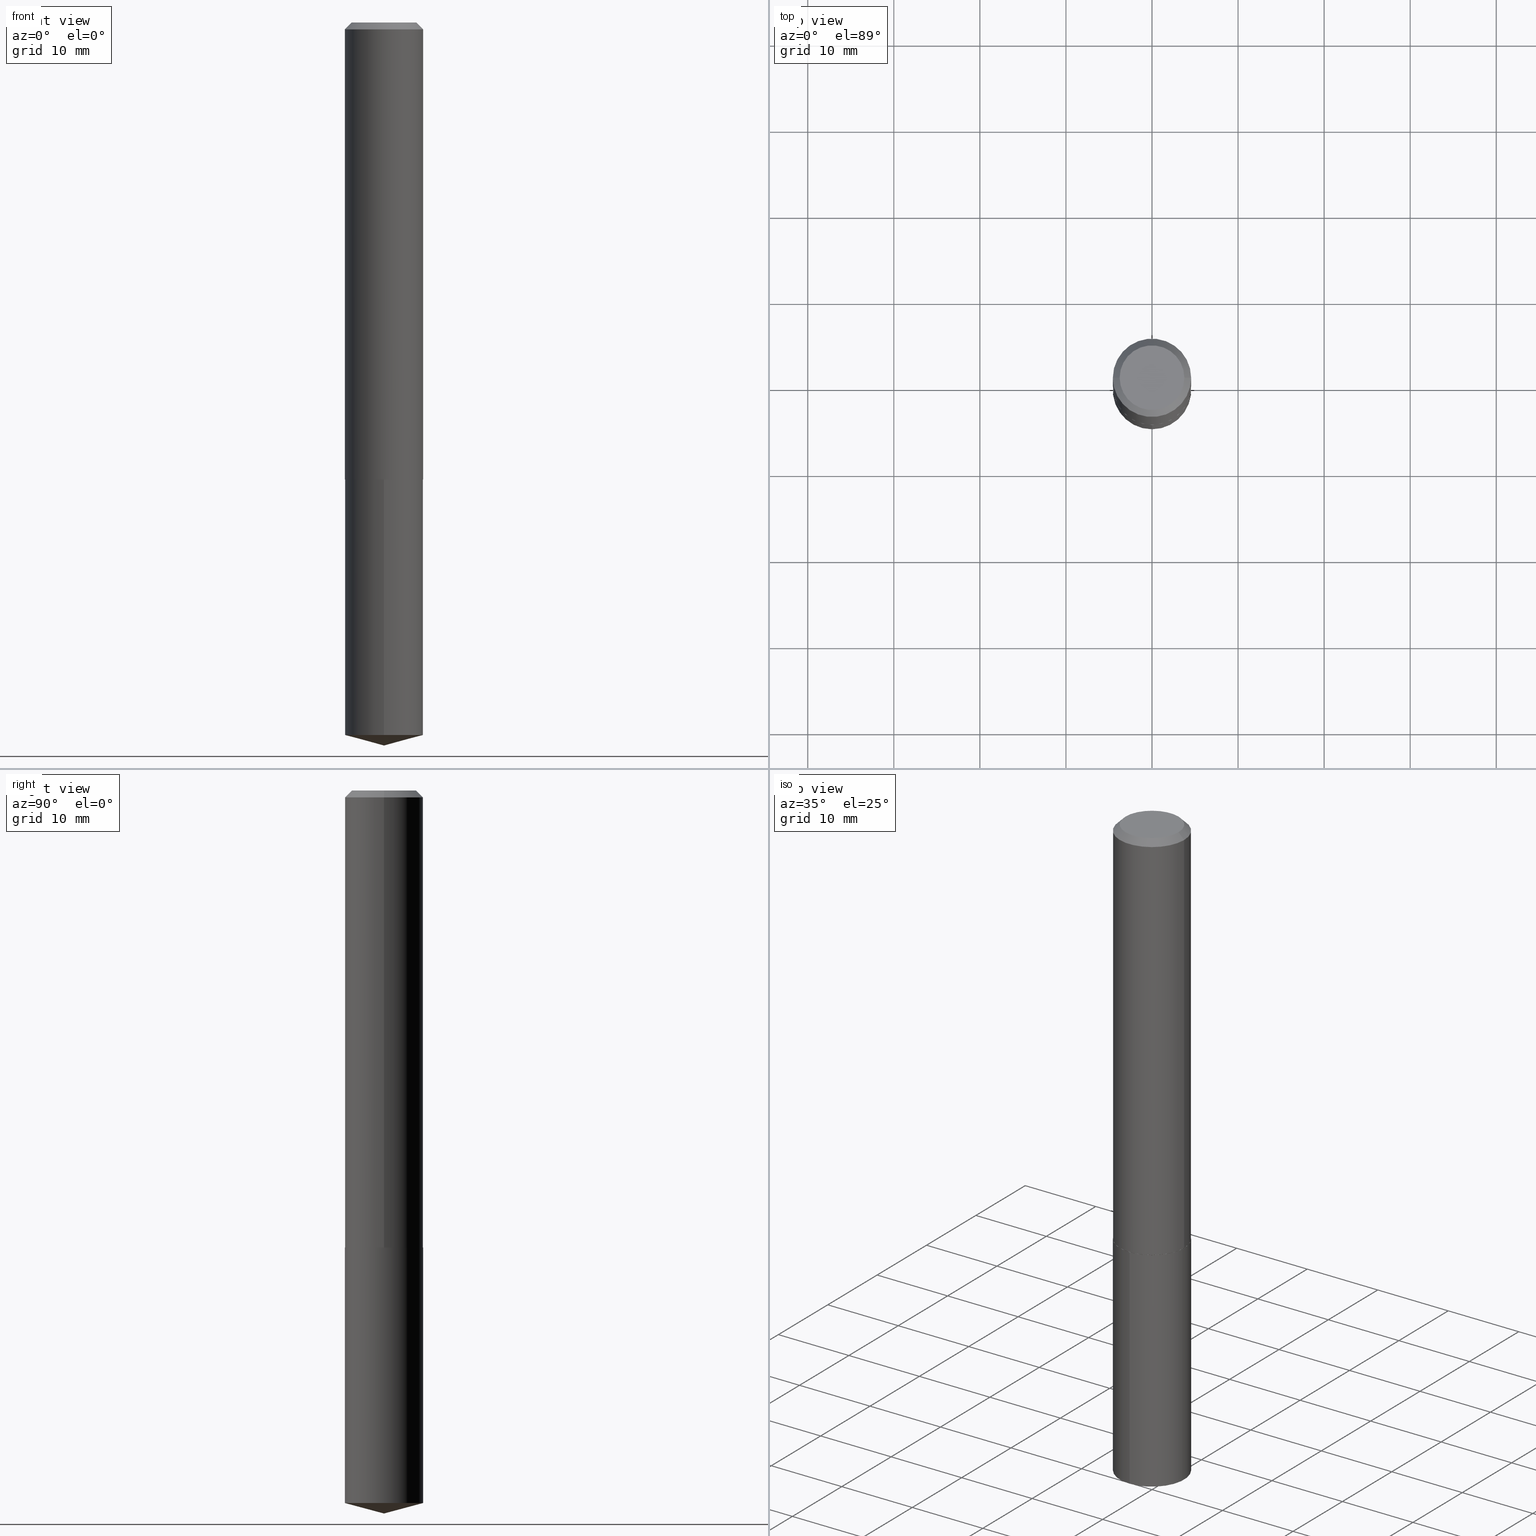
[diagram: canonical four-view strip — front | top / right | iso, engineering-drawing reading convention]
A machine part, canonical four-view strip (front | top / right | iso — engineering-drawing reading convention). The complete STEP part file that produces these views, byte-faithful:
ISO-10303-21;
HEADER;
FILE_DESCRIPTION (( 'STEP AP203' ),
    '1' );
FILE_NAME ('69026.STEP',
    '2024-04-23T14:26:44',
    ( '' ),
    ( '' ),
    'SwSTEP 2.0',
    'SolidWorks 2023',
    '' );
FILE_SCHEMA (( 'CONFIG_CONTROL_DESIGN' ));
ENDSEC;

DATA;
#1 = APPROVAL_DATE_TIME ( #4, #276 ) ;
#2 = ORIENTED_EDGE ( 'NONE', *, *, #3, .T. ) ;
#3 = EDGE_CURVE ( 'NONE', #260, #53, #76, .T. ) ;
#4 = DATE_AND_TIME ( #256, #354 ) ;
#5 = APPLICATION_CONTEXT ( 'configuration controlled 3d designs of mechanical parts and assemblies' ) ;
#6 = CARTESIAN_POINT ( 'NONE',  ( 5.111274351807554765E-29, -7.297545146316060308E-15, -2.090100000000000513 ) ) ;
#7 = DIRECTION ( 'NONE',  ( 1.000000000000000000, -6.982962677686267499E-15, 4.876180342865737915E-29 ) ) ;
#8 = AXIS2_PLACEMENT_3D ( 'NONE', #235, #365, #102 ) ;
#9 = APPROVAL_PERSON_ORGANIZATION ( #97, #293, #70 ) ;
#10 = EDGE_CURVE ( 'NONE', #190, #53, #63, .T. ) ;
#11 = CARTESIAN_POINT ( 'NONE',  ( -0.1791500000000000314, -2.430389657963233420E-15, -0.03125000000000018735 ) ) ;
#12 = DIRECTION ( 'NONE',  ( -6.982962677686265133E-15, -1.000000000000000000, 3.049788438363675772E-15 ) ) ;
#13 = ORIENTED_EDGE ( 'NONE', *, *, #351, .T. ) ;
#14 = ORIENTED_EDGE ( 'NONE', *, *, #79, .F. ) ;
#15 = LINE ( 'NONE', #129, #303 ) ;
#16 = CONICAL_SURFACE ( 'NONE', #8, 146.9311341562574853, 1.308996938995751425 ) ;
#17 = CC_DESIGN_APPROVAL ( #130, ( #286 ) ) ;
#18 = DIRECTION ( 'NONE',  ( -6.745023994389843866E-15, -0.9659258262890684232, 0.2588190451025200178 ) ) ;
#19 = ORIENTED_EDGE ( 'NONE', *, *, #283, .F. ) ;
#20 = EDGE_CURVE ( 'NONE', #352, #190, #99, .T. ) ;
#21 = DIRECTION ( 'NONE',  ( -0.7071067811865454633, 2.468850131082235367E-15, -0.7071067811865495711 ) ) ;
#22 = CONICAL_SURFACE ( 'NONE', #382, 0.1791500000000000314, 0.7853981633974453924 ) ;
#23 = DIRECTION ( 'NONE',  ( -2.445528270393014272E-29, 3.491396182712972122E-15, 1.000000000000000000 ) ) ;
#24 = CC_DESIGN_DATE_AND_TIME_ASSIGNMENT ( #227, #259, ( #304 ) ) ;
#25 = ADVANCED_FACE ( 'NONE', ( #96 ), #160, .T. ) ;
#26 = CIRCLE ( 'NONE', #61, 0.1791500000000002535 ) ;
#27 =( NAMED_UNIT ( * ) SI_UNIT ( $, .STERADIAN. ) SOLID_ANGLE_UNIT ( ) );
#28 = APPROVAL_ROLE ( '' ) ;
#29 = PERSON_AND_ORGANIZATION ( #348, #207 ) ;
#30 = DIRECTION ( 'NONE',  ( -2.445468806185136597E-29, 3.491481338843145583E-15, 1.000000000000000000 ) ) ;
#31 = APPROVAL_STATUS ( 'not_yet_approved' ) ;
#32 = AXIS2_PLACEMENT_3D ( 'NONE', #236, #163, #12 ) ;
#33 = DIRECTION ( 'NONE',  ( -1.000000000000000000, 6.982962677686267499E-15, 0.000000000000000000 ) ) ;
#34 = EDGE_CURVE ( 'NONE', #326, #181, #72, .T. ) ;
#35 = LOCAL_TIME ( 10, 26, 44.00000000000000000, #36 ) ;
#36 = COORDINATED_UNIVERSAL_TIME_OFFSET ( 5, 0, .BEHIND. ) ;
#37 = ORIENTED_EDGE ( 'NONE', *, *, #234, .F. ) ;
#38 = COORDINATED_UNIVERSAL_TIME_OFFSET ( 5, 0, .BEHIND. ) ;
#39 = CARTESIAN_POINT ( 'NONE',  ( 0.1791500000000002535, -8.548542910023556308E-15, -2.090100000000000513 ) ) ;
#40 = VERTEX_POINT ( 'NONE', #98 ) ;
#41 = EDGE_CURVE ( 'NONE', #190, #352, #376, .T. ) ;
#42 = FACE_OUTER_BOUND ( 'NONE', #174, .T. ) ;
#43 = CIRCLE ( 'NONE', #32, 0.1791500000000000314 ) ;
#44 = AXIS2_PLACEMENT_3D ( 'NONE', #239, #78, #338 ) ;
#45 = FACE_OUTER_BOUND ( 'NONE', #308, .T. ) ;
#46 = DIRECTION ( 'NONE',  ( 1.000000000000000000, -6.982962677686267499E-15, 4.876176775795936353E-29 ) ) ;
#47 = CARTESIAN_POINT ( 'NONE',  ( -0.1791500000000001147, 1.272937311114220298E-15, -8.812272214191669091E-30 ) ) ;
#48 = VECTOR ( 'NONE', #108, 39.37007874015748143 ) ;
#49 = LINE ( 'NONE', #47, #48 ) ;
#50 = APPLICATION_CONTEXT ( 'configuration controlled 3d designs of mechanical parts and assemblies' ) ;
#51 = CARTESIAN_POINT ( 'NONE',  ( 5.112497086210647566E-29, -7.299290886985481023E-15, -2.090600000000000236 ) ) ;
#52 = VERTEX_POINT ( 'NONE', #300 ) ;
#53 = VERTEX_POINT ( 'NONE', #39 ) ;
#54 = CC_DESIGN_PERSON_AND_ORGANIZATION_ASSIGNMENT ( #62, #125, ( #286 ) ) ;
#55 = CARTESIAN_POINT ( 'NONE',  ( -1.250997763707443541E-15, -0.1791500000000073312, -2.090599999999999792 ) ) ;
#56 = AXIS2_PLACEMENT_3D ( 'NONE', #274, #157, #159 ) ;
#57 = LOCAL_TIME ( 10, 26, 44.00000000000000000, #177 ) ;
#58 = DIRECTION ( 'NONE',  ( -6.982962677686265133E-15, -1.000000000000000000, 3.049788438363675772E-15 ) ) ;
#59 = LENGTH_MEASURE_WITH_UNIT ( LENGTH_MEASURE( 0.02539999999999999897 ), #169 );
#60 = CARTESIAN_POINT ( 'NONE',  ( 5.112497086210647566E-29, -7.299290886985481023E-15, -2.090600000000000236 ) ) ;
#61 = AXIS2_PLACEMENT_3D ( 'NONE', #182, #30, #302 ) ;
#62 = PERSON_AND_ORGANIZATION ( #348, #207 ) ;
#63 = LINE ( 'NONE', #325, #154 ) ;
#64 = PRODUCT_DEFINITION ( 'UNKNOWN', '', #286, #374 ) ;
#65 = PERSON_AND_ORGANIZATION ( #348, #207 ) ;
#66 = ORIENTED_EDGE ( 'NONE', *, *, #10, .F. ) ;
#67 = DATE_AND_TIME ( #173, #215 ) ;
#68 = CONICAL_SURFACE ( 'NONE', #141, 146.9311341562574853, 1.308996938995751425 ) ;
#69 = CARTESIAN_POINT ( 'NONE',  ( 5.112497086210647566E-29, -7.299290886985481023E-15, -2.090600000000000236 ) ) ;
#70 = APPROVAL_ROLE ( '' ) ;
#71 = ORIENTED_EDGE ( 'NONE', *, *, #79, .T. ) ;
#72 = LINE ( 'NONE', #94, #388 ) ;
#73 = ORIENTED_EDGE ( 'NONE', *, *, #314, .F. ) ;
#74 = DIRECTION ( 'NONE',  ( -0.7071067811865957564, 7.493145998870527710E-15, 0.7071067811864992780 ) ) ;
#75 = FACE_OUTER_BOUND ( 'NONE', #292, .T. ) ;
#76 = CIRCLE ( 'NONE', #91, 0.1791500000000002535 ) ;
#77 = AXIS2_PLACEMENT_3D ( 'NONE', #139, #89, #320 ) ;
#78 = DIRECTION ( 'NONE',  ( -2.445468806185136597E-29, 3.491481338843145583E-15, 1.000000000000000000 ) ) ;
#79 = EDGE_CURVE ( 'NONE', #52, #271, #195, .T. ) ;
#80 = DIRECTION ( 'NONE',  ( -1.000000000000000000, 6.982962677686267499E-15, 0.000000000000000000 ) ) ;
#81 = FACE_OUTER_BOUND ( 'NONE', #83, .T. ) ;
#82 = DIRECTION ( 'NONE',  ( 6.863315791527698204E-15, 0.9659258262890701996, 0.2588190451025132455 ) ) ;
#83 = EDGE_LOOP ( 'NONE', ( #337, #273, #100, #209 ) ) ;
#84 = ADVANCED_FACE ( 'NONE', ( #126 ), #16, .T. ) ;
#85 = DIRECTION ( 'NONE',  ( 1.000000000000000000, -6.982962677686267499E-15, 4.876176775795936353E-29 ) ) ;
#86 = CARTESIAN_POINT ( 'NONE',  ( 5.112497086210647566E-29, -7.299290886985481023E-15, -2.090600000000000236 ) ) ;
#87 = AXIS2_PLACEMENT_3D ( 'NONE', #51, #225, #347 ) ;
#88 = CC_DESIGN_SECURITY_CLASSIFICATION ( #304, ( #286 ) ) ;
#89 = DIRECTION ( 'NONE',  ( -2.445468806185136597E-29, 3.491481338843145583E-15, 1.000000000000000000 ) ) ;
#90 = MECHANICAL_CONTEXT ( 'NONE', #50, 'mechanical' ) ;
#91 = AXIS2_PLACEMENT_3D ( 'NONE', #6, #211, #229 ) ;
#92 = APPROVAL_DATE_TIME ( #67, #130 ) ;
#93 = AXIS2_PLACEMENT_3D ( 'NONE', #285, #115, #85 ) ;
#94 = CARTESIAN_POINT ( 'NONE',  ( 1.272937311114270588E-15, 0.1791499999999927040, -2.090600000000001124 ) ) ;
#95 = CC_DESIGN_PERSON_AND_ORGANIZATION_ASSIGNMENT ( #29, #149, ( #304 ) ) ;
#96 = FACE_OUTER_BOUND ( 'NONE', #231, .T. ) ;
#97 = PERSON_AND_ORGANIZATION ( #348, #207 ) ;
#98 = CARTESIAN_POINT ( 'NONE',  ( 0.1791500000000000314, -1.360106555546343720E-15, -0.03125000000000018735 ) ) ;
#99 = CIRCLE ( 'NONE', #370, 0.1786500000000002808 ) ;
#100 = ORIENTED_EDGE ( 'NONE', *, *, #283, .T. ) ;
#101 = CALENDAR_DATE ( 2024, 23, 4 ) ;
#102 = DIRECTION ( 'NONE',  ( -6.982962677686265133E-15, -1.000000000000000000, 3.510303681827581269E-15 ) ) ;
#103 = DIRECTION ( 'NONE',  ( 0.7071067811865454633, -7.319954787623248157E-15, -0.7071067811865495711 ) ) ;
#104 = DIRECTION ( 'NONE',  ( -2.438088387897960049E-29, 3.491481338843145188E-15, 1.000000000000000000 ) ) ;
#105 = AXIS2_PLACEMENT_3D ( 'NONE', #60, #192, #58 ) ;
#106 = AXIS2_PLACEMENT_3D ( 'NONE', #114, #164, #252 ) ;
#107 = EDGE_CURVE ( 'NONE', #352, #260, #295, .T. ) ;
#108 = DIRECTION ( 'NONE',  ( -2.445468806185136877E-29, 3.491481338843145188E-15, 1.000000000000000000 ) ) ;
#109 = CARTESIAN_POINT ( 'NONE',  ( 0.000000000000000000, 0.000000000000000000, 0.000000000000000000 ) ) ;
#110 = FACE_OUTER_BOUND ( 'NONE', #345, .T. ) ;
#111 = EDGE_CURVE ( 'NONE', #53, #260, #26, .T. ) ;
#112 = AXIS2_PLACEMENT_3D ( 'NONE', #307, #313, #315 ) ;
#113 = PERSON_AND_ORGANIZATION_ROLE ( 'design_owner' ) ;
#114 = CARTESIAN_POINT ( 'NONE',  ( 5.112497086210647566E-29, -7.299290886985481023E-15, -2.090600000000000236 ) ) ;
#115 = DIRECTION ( 'NONE',  ( -2.445468806185136597E-29, 3.491481338843145583E-15, 1.000000000000000000 ) ) ;
#116 = CARTESIAN_POINT ( 'NONE',  ( -2.994835545909350361E-48, 4.275831445897007673E-34, 1.224646799147363014E-19 ) ) ;
#117 = ADVANCED_FACE ( 'NONE', ( #42 ), #381, .F. ) ;
#118 = DIRECTION ( 'NONE',  ( -2.445528270393014272E-29, 3.491396182712972122E-15, 1.000000000000000000 ) ) ;
#119 = APPLICATION_PROTOCOL_DEFINITION ( 'international standard', 'config_control_design', 1994, #50 ) ;
#120 = CC_DESIGN_PERSON_AND_ORGANIZATION_ASSIGNMENT ( #65, #327, ( #64 ) ) ;
#121 = SHAPE_DEFINITION_REPRESENTATION ( #168, #213 ) ;
#122 = ORIENTED_EDGE ( 'NONE', *, *, #34, .F. ) ;
#123 = DIRECTION ( 'NONE',  ( -2.445528270393014272E-29, 3.491396182712971728E-15, 1.000000000000000000 ) ) ;
#124 = ORIENTED_EDGE ( 'NONE', *, *, #385, .T. ) ;
#125 = PERSON_AND_ORGANIZATION_ROLE ( 'creator' ) ;
#126 = FACE_OUTER_BOUND ( 'NONE', #240, .T. ) ;
#127 = ORIENTED_EDGE ( 'NONE', *, *, #111, .T. ) ;
#128 = LINE ( 'NONE', #341, #321 ) ;
#129 = CARTESIAN_POINT ( 'NONE',  ( 0.1791500000000001147, -1.250997763707495606E-15, 8.735670693838425178E-30 ) ) ;
#130 = APPROVAL ( #208, 'UNSPECIFIED' ) ;
#131 = DIRECTION ( 'NONE',  ( -2.445468806185136877E-29, 3.491481338843145188E-15, 1.000000000000000000 ) ) ;
#132 = VERTEX_POINT ( 'NONE', #11 ) ;
#133 = EDGE_LOOP ( 'NONE', ( #188, #2, #305, #175 ) ) ;
#134 = CARTESIAN_POINT ( 'NONE',  ( 8.087606543016738153E-29, -1.154639631585007168E-14, -3.307100000000000151 ) ) ;
#135 = ORIENTED_EDGE ( 'NONE', *, *, #222, .T. ) ;
#136 = ORIENTED_EDGE ( 'NONE', *, *, #41, .F. ) ;
#137 = ADVANCED_FACE ( 'NONE', ( #45 ), #237, .F. ) ;
#138 = CARTESIAN_POINT ( 'NONE',  ( 7.642090019328597407E-31, -1.091087918388489527E-16, -0.03125000000000018735 ) ) ;
#139 = CARTESIAN_POINT ( 'NONE',  ( 5.111274351807554765E-29, -7.297545146316060308E-15, -2.090100000000000513 ) ) ;
#140 = FACE_OUTER_BOUND ( 'NONE', #153, .T. ) ;
#141 = AXIS2_PLACEMENT_3D ( 'NONE', #185, #344, #186 ) ;
#142 = ORIENTED_EDGE ( 'NONE', *, *, #20, .T. ) ;
#143 = EDGE_CURVE ( 'NONE', #132, #40, #270, .T. ) ;
#144 = PERSON_AND_ORGANIZATION ( #348, #207 ) ;
#145 = PERSON_AND_ORGANIZATION_ROLE ( 'design_supplier' ) ;
#146 = DIRECTION ( 'NONE',  ( -1.000000000000000000, 6.982962677686265922E-15, -4.876176775795935793E-29 ) ) ;
#147 = DATE_AND_TIME ( #204, #35 ) ;
#148 = CARTESIAN_POINT ( 'NONE',  ( 5.112497086210647566E-29, -7.299290886985481023E-15, -2.090600000000000236 ) ) ;
#149 = PERSON_AND_ORGANIZATION_ROLE ( 'classification_officer' ) ;
#150 = ORIENTED_EDGE ( 'NONE', *, *, #356, .F. ) ;
#151 = PERSON_AND_ORGANIZATION ( #348, #207 ) ;
#152 = CARTESIAN_POINT ( 'NONE',  ( -5.989671091818700721E-48, 8.551662891794015345E-34, 2.449293598294726028E-19 ) ) ;
#153 = EDGE_LOOP ( 'NONE', ( #255, #142, #251, #331 ) ) ;
#154 = VECTOR ( 'NONE', #361, 39.37007874015748143 ) ;
#155 = LINE ( 'NONE', #158, #247 ) ;
#156 = CC_DESIGN_PERSON_AND_ORGANIZATION_ASSIGNMENT ( #144, #145, ( #286 ) ) ;
#157 = DIRECTION ( 'NONE',  ( -2.445468806185136597E-29, 3.491481338843145583E-15, 1.000000000000000000 ) ) ;
#158 = CARTESIAN_POINT ( 'NONE',  ( 8.087357911270757740E-29, -1.154675237066155108E-14, -3.307100000000000151 ) ) ;
#159 = DIRECTION ( 'NONE',  ( 1.000000000000000000, -6.982962677686262766E-15, 0.000000000000000000 ) ) ;
#160 = CONICAL_SURFACE ( 'NONE', #200, 0.1791500000000000314, 0.7853981633974453924 ) ;
#161 = AXIS2_PLACEMENT_3D ( 'NONE', #355, #118, #198 ) ;
#162 = PRODUCT_RELATED_PRODUCT_CATEGORY ( 'detail', '', ( #318 ) ) ;
#163 = DIRECTION ( 'NONE',  ( -2.445528270393014272E-29, 3.491396182712972122E-15, 1.000000000000000000 ) ) ;
#164 = DIRECTION ( 'NONE',  ( -2.445528270393014272E-29, 3.491396182712972122E-15, 1.000000000000000000 ) ) ;
#165 = CYLINDRICAL_SURFACE ( 'NONE', #93, 0.1791500000000001147 ) ;
#166 = CIRCLE ( 'NONE', #106, 0.1791500000000000314 ) ;
#167 = VERTEX_POINT ( 'NONE', #187 ) ;
#168 = PRODUCT_DEFINITION_SHAPE ( 'NONE', 'NONE',  #64 ) ;
#169 =( LENGTH_UNIT ( ) NAMED_UNIT ( * ) SI_UNIT ( $, .METRE. ) );
#170 = EDGE_LOOP ( 'NONE', ( #202, #203, #266 ) ) ;
#171 = FACE_OUTER_BOUND ( 'NONE', #133, .T. ) ;
#172 = EDGE_CURVE ( 'NONE', #271, #52, #358, .T. ) ;
#173 = CALENDAR_DATE ( 2024, 23, 4 ) ;
#174 = EDGE_LOOP ( 'NONE', ( #210, #71 ) ) ;
#175 = ORIENTED_EDGE ( 'NONE', *, *, #143, .F. ) ;
#176 = CARTESIAN_POINT ( 'NONE',  ( 7.642090019328597407E-31, -1.091087918388489527E-16, -0.03125000000000018735 ) ) ;
#177 = COORDINATED_UNIVERSAL_TIME_OFFSET ( 5, 0, .BEHIND. ) ;
#178 = DIRECTION ( 'NONE',  ( -2.445468806185136597E-29, 3.491481338843145583E-15, 1.000000000000000000 ) ) ;
#179 = CC_DESIGN_DATE_AND_TIME_ASSIGNMENT ( #357, #329, ( #64 ) ) ;
#180 = ORIENTED_EDGE ( 'NONE', *, *, #356, .T. ) ;
#181 = VERTEX_POINT ( 'NONE', #309 ) ;
#182 = CARTESIAN_POINT ( 'NONE',  ( 5.111274351807554765E-29, -7.297545146316060308E-15, -2.090100000000000513 ) ) ;
#183 = CC_DESIGN_PERSON_AND_ORGANIZATION_ASSIGNMENT ( #377, #113, ( #318 ) ) ;
#184 = CIRCLE ( 'NONE', #317, 0.1791500000000000314 ) ;
#185 = CARTESIAN_POINT ( 'NONE',  ( -8.819315833951036694E-28, 1.259099682832391538E-13, 36.06297874015748306 ) ) ;
#186 = DIRECTION ( 'NONE',  ( -6.982962677686265133E-15, -1.000000000000000000, 3.510303681827581269E-15 ) ) ;
#187 = CARTESIAN_POINT ( 'NONE',  ( -1.250997763707415339E-15, -0.1791500000000114667, -3.259096902175965038 ) ) ;
#188 = ORIENTED_EDGE ( 'NONE', *, *, #193, .F. ) ;
#189 = CARTESIAN_POINT ( 'NONE',  ( -0.1479000000000000037, 1.087334575949222546E-15, 2.449293598220593614E-19 ) ) ;
#190 = VERTEX_POINT ( 'NONE', #371 ) ;
#191 = CARTESIAN_POINT ( 'NONE',  ( -0.1791500000000000314, 1.141888971868646111E-15, -0.03125000000000018735 ) ) ;
#192 = DIRECTION ( 'NONE',  ( -2.445528270393014272E-29, 3.491396182712972122E-15, 1.000000000000000000 ) ) ;
#193 = EDGE_CURVE ( 'NONE', #260, #132, #49, .T. ) ;
#194 = DIRECTION ( 'NONE',  ( -6.982962677686265133E-15, -1.000000000000000000, 3.049788438363675772E-15 ) ) ;
#195 = CIRCLE ( 'NONE', #343, 0.1479000000000000037 ) ;
#196 = CC_DESIGN_APPROVAL ( #293, ( #64 ) ) ;
#197 = ORIENTED_EDGE ( 'NONE', *, *, #351, .F. ) ;
#198 = DIRECTION ( 'NONE',  ( -6.982962677686265133E-15, -1.000000000000000000, 3.049788438363675772E-15 ) ) ;
#199 = ADVANCED_FACE ( 'NONE', ( #373 ), #272, .T. ) ;
#200 = AXIS2_PLACEMENT_3D ( 'NONE', #176, #296, #33 ) ;
#201 = EDGE_LOOP ( 'NONE', ( #124, #13 ) ) ;
#202 = ORIENTED_EDGE ( 'NONE', *, *, #222, .F. ) ;
#203 = ORIENTED_EDGE ( 'NONE', *, *, #241, .T. ) ;
#204 = CALENDAR_DATE ( 2024, 23, 4 ) ;
#205 = ORIENTED_EDGE ( 'NONE', *, *, #246, .T. ) ;
#206 = VECTOR ( 'NONE', #21, 39.37007874015748143 ) ;
#207 = ORGANIZATION ( 'UNSPECIFIED', 'UNSPECIFIED', '' ) ;
#208 = APPROVAL_STATUS ( 'not_yet_approved' ) ;
#209 = ORIENTED_EDGE ( 'NONE', *, *, #143, .T. ) ;
#210 = ORIENTED_EDGE ( 'NONE', *, *, #172, .T. ) ;
#211 = DIRECTION ( 'NONE',  ( -2.445468806185136597E-29, 3.491481338843145583E-15, 1.000000000000000000 ) ) ;
#212 = ADVANCED_FACE ( 'NONE', ( #75 ), #311, .T. ) ;
#213 = ADVANCED_BREP_SHAPE_REPRESENTATION ( '69026', ( #349, #346, #384 ), #291 ) ;
#214 = FACE_OUTER_BOUND ( 'NONE', #170, .T. ) ;
#215 = LOCAL_TIME ( 10, 26, 44.00000000000000000, #263 ) ;
#216 = LINE ( 'NONE', #219, #297 ) ;
#217 = CARTESIAN_POINT ( 'NONE',  ( -1.250997763707443541E-15, -0.1791500000000073312, -2.090599999999999792 ) ) ;
#218 = EDGE_CURVE ( 'NONE', #52, #40, #216, .T. ) ;
#219 = CARTESIAN_POINT ( 'NONE',  ( 0.1791500000000000314, -1.338167008139618831E-15, -0.03125000000000018735 ) ) ;
#220 = CARTESIAN_POINT ( 'NONE',  ( 7.642090019328597407E-31, -1.091087918388489527E-16, -0.03125000000000018735 ) ) ;
#221 = APPLICATION_PROTOCOL_DEFINITION ( 'international standard', 'config_control_design', 1994, #5 ) ;
#222 = EDGE_CURVE ( 'NONE', #258, #326, #128, .T. ) ;
#223 = CC_DESIGN_APPROVAL ( #276, ( #304 ) ) ;
#224 = DIRECTION ( 'NONE',  ( 2.438088387897960049E-29, -3.491481338843145188E-15, -1.000000000000000000 ) ) ;
#225 = DIRECTION ( 'NONE',  ( 2.445528270393014272E-29, -3.491396182712971728E-15, -1.000000000000000000 ) ) ;
#226 = CYLINDRICAL_SURFACE ( 'NONE', #228, 0.1791500000000000314 ) ;
#227 = DATE_AND_TIME ( #268, #57 ) ;
#228 = AXIS2_PLACEMENT_3D ( 'NONE', #86, #23, #248 ) ;
#229 = DIRECTION ( 'NONE',  ( 1.000000000000000000, -6.982962677686262766E-15, 0.000000000000000000 ) ) ;
#230 = DIRECTION ( 'NONE',  ( 1.000000000000000000, -6.982962677686270655E-15, 0.000000000000000000 ) ) ;
#231 = EDGE_LOOP ( 'NONE', ( #14, #264, #282, #19 ) ) ;
#232 = CLOSED_SHELL ( 'NONE', ( #323, #84, #261, #332, #342 ) ) ;
#233 = APPROVAL_ROLE ( '' ) ;
#234 = EDGE_CURVE ( 'NONE', #167, #389, #278, .T. ) ;
#235 = CARTESIAN_POINT ( 'NONE',  ( -8.819315833951036694E-28, 1.259099682832391538E-13, 36.06297874015748306 ) ) ;
#236 = CARTESIAN_POINT ( 'NONE',  ( 7.970089294348630770E-29, -1.137897651075457780E-14, -3.259096902175965482 ) ) ;
#237 = PLANE ( 'NONE',  #290 ) ;
#238 = LOCAL_TIME ( 10, 26, 44.00000000000000000, #38 ) ;
#239 = CARTESIAN_POINT ( 'NONE',  ( 7.642090019328597407E-31, -1.091087918388489527E-16, -0.03125000000000018735 ) ) ;
#240 = EDGE_LOOP ( 'NONE', ( #289, #135, #150 ) ) ;
#241 = EDGE_CURVE ( 'NONE', #258, #167, #155, .T. ) ;
#242 = DIRECTION ( 'NONE',  ( 1.000000000000000000, -6.982962677686265922E-15, 4.876176775795935793E-29 ) ) ;
#243 = DIRECTION ( 'NONE',  ( -2.445468806185136597E-29, 3.491481338843145583E-15, 1.000000000000000000 ) ) ;
#244 = AXIS2_PLACEMENT_3D ( 'NONE', #109, #367, #46 ) ;
#245 = DIRECTION ( 'NONE',  ( 0.000000000000000000, 0.000000000000000000, 1.000000000000000000 ) ) ;
#246 = EDGE_CURVE ( 'NONE', #326, #167, #43, .T. ) ;
#247 = VECTOR ( 'NONE', #18, 39.37007874015748854 ) ;
#248 = DIRECTION ( 'NONE',  ( -6.982962677686265133E-15, -1.000000000000000000, 3.049788438363675772E-15 ) ) ;
#249 = UNCERTAINTY_MEASURE_WITH_UNIT (LENGTH_MEASURE( 1.000000000000000082E-05 ), #350, 'distance_accuracy_value', 'NONE');
#250 = CARTESIAN_POINT ( 'NONE',  ( -0.1786500000000002808, -6.027257062375948647E-15, -2.090600000000000236 ) ) ;
#251 = ORIENTED_EDGE ( 'NONE', *, *, #10, .T. ) ;
#252 = DIRECTION ( 'NONE',  ( -6.982962677686265133E-15, -1.000000000000000000, 3.049788438363675772E-15 ) ) ;
#253 = CIRCLE ( 'NONE', #161, 0.1791500000000000314 ) ;
#254 = CARTESIAN_POINT ( 'NONE',  ( 0.000000000000000000, 0.000000000000000000, 0.000000000000000000 ) ) ;
#255 = ORIENTED_EDGE ( 'NONE', *, *, #107, .F. ) ;
#256 = CALENDAR_DATE ( 2024, 23, 4 ) ;
#257 = ORIENTED_EDGE ( 'NONE', *, *, #385, .F. ) ;
#258 = VERTEX_POINT ( 'NONE', #134 ) ;
#259 = DATE_TIME_ROLE ( 'classification_date' ) ;
#260 = VERTEX_POINT ( 'NONE', #281 ) ;
#261 = ADVANCED_FACE ( 'NONE', ( #214 ), #68, .T. ) ;
#262 = VECTOR ( 'NONE', #306, 39.37007874015748143 ) ;
#263 = COORDINATED_UNIVERSAL_TIME_OFFSET ( 5, 0, .BEHIND. ) ;
#264 = ORIENTED_EDGE ( 'NONE', *, *, #218, .T. ) ;
#265 = PERSON_AND_ORGANIZATION ( #348, #207 ) ;
#266 = ORIENTED_EDGE ( 'NONE', *, *, #246, .F. ) ;
#267 = ADVANCED_FACE ( 'NONE', ( #81 ), #22, .T. ) ;
#268 = CALENDAR_DATE ( 2024, 23, 4 ) ;
#269 = DIRECTION ( 'NONE',  ( -2.445468806185136597E-29, 3.491481338843145583E-15, 1.000000000000000000 ) ) ;
#270 = CIRCLE ( 'NONE', #44, 0.1791500000000000314 ) ;
#271 = VERTEX_POINT ( 'NONE', #189 ) ;
#272 = CYLINDRICAL_SURFACE ( 'NONE', #244, 0.1791500000000001147 ) ;
#273 = ORIENTED_EDGE ( 'NONE', *, *, #172, .F. ) ;
#274 = CARTESIAN_POINT ( 'NONE',  ( 5.111274351807554765E-29, -7.297545146316060308E-15, -2.090100000000000513 ) ) ;
#275 = LINE ( 'NONE', #191, #206 ) ;
#276 = APPROVAL ( #31, 'UNSPECIFIED' ) ;
#277 = CLOSED_SHELL ( 'NONE', ( #25, #199, #212, #137, #368, #372, #267, #117 ) ) ;
#278 = LINE ( 'NONE', #217, #262 ) ;
#279 = ORIENTED_EDGE ( 'NONE', *, *, #20, .F. ) ;
#280 = DIMENSIONAL_EXPONENTS ( 1.000000000000000000, 0.000000000000000000, 0.000000000000000000, 0.000000000000000000, 0.000000000000000000, 0.000000000000000000, 0.000000000000000000 ) ;
#281 = CARTESIAN_POINT ( 'NONE',  ( -0.1791500000000002535, -6.024607835201839024E-15, -2.090100000000000513 ) ) ;
#282 = ORIENTED_EDGE ( 'NONE', *, *, #319, .T. ) ;
#283 = EDGE_CURVE ( 'NONE', #271, #132, #275, .T. ) ;
#284 = AXIS2_PLACEMENT_3D ( 'NONE', #116, #224, #146 ) ;
#285 = CARTESIAN_POINT ( 'NONE',  ( 0.000000000000000000, 0.000000000000000000, 0.000000000000000000 ) ) ;
#286 = PRODUCT_DEFINITION_FORMATION_WITH_SPECIFIED_SOURCE ( 'ANY', '', #318, .NOT_KNOWN. ) ;
#287 =( NAMED_UNIT ( * ) PLANE_ANGLE_UNIT ( ) SI_UNIT ( $, .RADIAN. ) );
#288 = PLANE ( 'NONE',  #87 ) ;
#289 = ORIENTED_EDGE ( 'NONE', *, *, #241, .F. ) ;
#290 = AXIS2_PLACEMENT_3D ( 'NONE', #369, #104, #242 ) ;
#291 =( GEOMETRIC_REPRESENTATION_CONTEXT ( 3 ) GLOBAL_UNCERTAINTY_ASSIGNED_CONTEXT ( ( #249 ) ) GLOBAL_UNIT_ASSIGNED_CONTEXT ( ( #350, #287, #27 ) ) REPRESENTATION_CONTEXT ( 'NONE', 'WORKASPACE' ) );
#292 = EDGE_LOOP ( 'NONE', ( #363, #359, #366, #66 ) ) ;
#293 = APPROVAL ( #324, 'UNSPECIFIED' ) ;
#294 = SECURITY_CLASSIFICATION_LEVEL ( 'unclassified' ) ;
#295 = LINE ( 'NONE', #333, #364 ) ;
#296 = DIRECTION ( 'NONE',  ( 2.445468806185136597E-29, -3.491481338843145583E-15, -1.000000000000000000 ) ) ;
#297 = VECTOR ( 'NONE', #103, 39.37007874015748143 ) ;
#298 = CIRCLE ( 'NONE', #390, 0.1791500000000000314 ) ;
#299 = DIRECTION ( 'NONE',  ( 1.000000000000000000, -6.982962677686270655E-15, 0.000000000000000000 ) ) ;
#300 = CARTESIAN_POINT ( 'NONE',  ( 0.1479000000000000037, -1.176417331005014297E-15, 2.449293598371968819E-19 ) ) ;
#301 = ORIENTED_EDGE ( 'NONE', *, *, #34, .T. ) ;
#302 = DIRECTION ( 'NONE',  ( 1.000000000000000000, -6.982962677686262766E-15, 0.000000000000000000 ) ) ;
#303 = VECTOR ( 'NONE', #131, 39.37007874015748143 ) ;
#304 = SECURITY_CLASSIFICATION ( '', '', #294 ) ;
#305 = ORIENTED_EDGE ( 'NONE', *, *, #314, .T. ) ;
#306 = DIRECTION ( 'NONE',  ( -2.445528270393014272E-29, 3.491396182712971728E-15, 1.000000000000000000 ) ) ;
#307 = CARTESIAN_POINT ( 'NONE',  ( -5.989671091818700721E-48, 8.551662891794015345E-34, 2.449293598294726028E-19 ) ) ;
#308 = EDGE_LOOP ( 'NONE', ( #136, #279 ) ) ;
#309 = CARTESIAN_POINT ( 'NONE',  ( 1.272937311114299184E-15, 0.1791499999999927040, -2.090600000000001124 ) ) ;
#310 = ORIENTED_EDGE ( 'NONE', *, *, #234, .T. ) ;
#311 = CONICAL_SURFACE ( 'NONE', #56, 0.1791500000000002535, 0.7853981633975165577 ) ;
#312 = APPROVAL_PERSON_ORGANIZATION ( #151, #130, #28 ) ;
#313 = DIRECTION ( 'NONE',  ( -2.445468806185136597E-29, 3.491481338843145583E-15, 1.000000000000000000 ) ) ;
#314 = EDGE_CURVE ( 'NONE', #53, #40, #15, .T. ) ;
#315 = DIRECTION ( 'NONE',  ( 1.000000000000000000, -6.982962677686267499E-15, 4.876180342865737915E-29 ) ) ;
#316 = CARTESIAN_POINT ( 'NONE',  ( 1.272937311114299381E-15, 0.1791499999999886794, -3.259096902175965926 ) ) ;
#317 = AXIS2_PLACEMENT_3D ( 'NONE', #138, #243, #375 ) ;
#318 = PRODUCT ( '69026', '69026', '', ( #90 ) ) ;
#319 = EDGE_CURVE ( 'NONE', #40, #132, #184, .T. ) ;
#320 = DIRECTION ( 'NONE',  ( 1.000000000000000000, -6.982962677686262766E-15, 0.000000000000000000 ) ) ;
#321 = VECTOR ( 'NONE', #82, 39.37007874015748854 ) ;
#322 = APPROVAL_PERSON_ORGANIZATION ( #265, #276, #233 ) ;
#323 = ADVANCED_FACE ( 'NONE', ( #110 ), #334, .T. ) ;
#324 = APPROVAL_STATUS ( 'not_yet_approved' ) ;
#325 = CARTESIAN_POINT ( 'NONE',  ( 0.1791500000000002535, -8.548542910023556308E-15, -2.090100000000000513 ) ) ;
#326 = VERTEX_POINT ( 'NONE', #316 ) ;
#327 = PERSON_AND_ORGANIZATION_ROLE ( 'creator' ) ;
#328 = DIRECTION ( 'NONE',  ( -2.445468806185136597E-29, 3.491481338843145583E-15, 1.000000000000000000 ) ) ;
#329 = DATE_TIME_ROLE ( 'creation_date' ) ;
#330 = ORIENTED_EDGE ( 'NONE', *, *, #193, .T. ) ;
#331 = ORIENTED_EDGE ( 'NONE', *, *, #3, .F. ) ;
#332 = ADVANCED_FACE ( 'NONE', ( #380 ), #226, .T. ) ;
#333 = CARTESIAN_POINT ( 'NONE',  ( -0.1791500000000002535, -6.024607835201839024E-15, -2.090100000000000513 ) ) ;
#334 = CYLINDRICAL_SURFACE ( 'NONE', #105, 0.1791500000000000314 ) ;
#335 = AXIS2_PLACEMENT_3D ( 'NONE', #69, #178, #299 ) ;
#336 = CONICAL_SURFACE ( 'NONE', #77, 0.1791500000000002535, 0.7853981633975165577 ) ;
#337 = ORIENTED_EDGE ( 'NONE', *, *, #218, .F. ) ;
#338 = DIRECTION ( 'NONE',  ( 1.000000000000000000, -6.982962677686267499E-15, 0.000000000000000000 ) ) ;
#339 = EDGE_LOOP ( 'NONE', ( #127, #330, #362, #73 ) ) ;
#340 = DIRECTION ( 'NONE',  ( 2.445468806185136597E-29, -3.491481338843145583E-15, -1.000000000000000000 ) ) ;
#341 = CARTESIAN_POINT ( 'NONE',  ( 8.087608723223663624E-29, -1.154639631585007168E-14, -3.307100000000000151 ) ) ;
#342 = ADVANCED_FACE ( 'NONE', ( #383 ), #288, .F. ) ;
#343 = AXIS2_PLACEMENT_3D ( 'NONE', #152, #269, #7 ) ;
#344 = DIRECTION ( 'NONE',  ( -2.445528270393014272E-29, 3.491396182712972122E-15, 1.000000000000000000 ) ) ;
#345 = EDGE_LOOP ( 'NONE', ( #180, #301, #257, #37 ) ) ;
#346 = MANIFOLD_SOLID_BREP ( 'Body-Move/Copy2[2]', #277 ) ;
#347 = DIRECTION ( 'NONE',  ( 6.982962677686265922E-15, 1.000000000000000000, -3.491396182712971728E-15 ) ) ;
#348 = PERSON ( 'UNSPECIFIED', 'UNSPECIFIED', 'UNSPECIFIED', ('UNSPECIFIED'), ('UNSPECIFIED'), ('UNSPECIFIED') ) ;
#349 = MANIFOLD_SOLID_BREP ( 'Body-Move/Copy2[1]', #232 ) ;
#350 =( CONVERSION_BASED_UNIT ( 'INCH', #59 ) LENGTH_UNIT ( ) NAMED_UNIT ( #280 ) );
#351 = EDGE_CURVE ( 'NONE', #181, #389, #253, .T. ) ;
#352 = VERTEX_POINT ( 'NONE', #250 ) ;
#353 = CARTESIAN_POINT ( 'NONE',  ( 7.970089294348630770E-29, -1.137897651075457780E-14, -3.259096902175965482 ) ) ;
#354 = LOCAL_TIME ( 10, 26, 44.00000000000000000, #360 ) ;
#355 = CARTESIAN_POINT ( 'NONE',  ( 5.112497086210647566E-29, -7.299290886985481023E-15, -2.090600000000000236 ) ) ;
#356 = EDGE_CURVE ( 'NONE', #167, #326, #298, .T. ) ;
#357 = DATE_AND_TIME ( #101, #238 ) ;
#358 = CIRCLE ( 'NONE', #112, 0.1479000000000000037 ) ;
#359 = ORIENTED_EDGE ( 'NONE', *, *, #107, .T. ) ;
#360 = COORDINATED_UNIVERSAL_TIME_OFFSET ( 5, 0, .BEHIND. ) ;
#361 = DIRECTION ( 'NONE',  ( 0.7071067811865957564, -2.468850131082761932E-15, 0.7071067811864992780 ) ) ;
#362 = ORIENTED_EDGE ( 'NONE', *, *, #319, .F. ) ;
#363 = ORIENTED_EDGE ( 'NONE', *, *, #41, .T. ) ;
#364 = VECTOR ( 'NONE', #74, 39.37007874015748143 ) ;
#365 = DIRECTION ( 'NONE',  ( -2.445528270393014272E-29, 3.491396182712972122E-15, 1.000000000000000000 ) ) ;
#366 = ORIENTED_EDGE ( 'NONE', *, *, #111, .F. ) ;
#367 = DIRECTION ( 'NONE',  ( -2.445468806185136597E-29, 3.491481338843145583E-15, 1.000000000000000000 ) ) ;
#368 = ADVANCED_FACE ( 'NONE', ( #140 ), #336, .T. ) ;
#369 = CARTESIAN_POINT ( 'NONE',  ( 2.880137370030068309E-29, -1.049615705858050030E-14, -2.090600000000000236 ) ) ;
#370 = AXIS2_PLACEMENT_3D ( 'NONE', #148, #328, #230 ) ;
#371 = CARTESIAN_POINT ( 'NONE',  ( 0.1786500000000002808, -8.546797169354135593E-15, -2.090600000000000236 ) ) ;
#372 = ADVANCED_FACE ( 'NONE', ( #171 ), #165, .T. ) ;
#373 = FACE_OUTER_BOUND ( 'NONE', #339, .T. ) ;
#374 = DESIGN_CONTEXT ( 'detailed design', #5, 'design' ) ;
#375 = DIRECTION ( 'NONE',  ( 1.000000000000000000, -6.982962677686267499E-15, 0.000000000000000000 ) ) ;
#376 = CIRCLE ( 'NONE', #335, 0.1786500000000002808 ) ;
#377 = PERSON_AND_ORGANIZATION ( #348, #207 ) ;
#378 = DIRECTION ( 'NONE',  ( -2.445528270393014272E-29, 3.491396182712972122E-15, 1.000000000000000000 ) ) ;
#379 = EDGE_LOOP ( 'NONE', ( #122, #205, #310, #197 ) ) ;
#380 = FACE_OUTER_BOUND ( 'NONE', #379, .T. ) ;
#381 = PLANE ( 'NONE',  #284 ) ;
#382 = AXIS2_PLACEMENT_3D ( 'NONE', #220, #340, #80 ) ;
#383 = FACE_OUTER_BOUND ( 'NONE', #201, .T. ) ;
#384 = AXIS2_PLACEMENT_3D ( 'NONE', #254, #245, #386 ) ;
#385 = EDGE_CURVE ( 'NONE', #389, #181, #166, .T. ) ;
#386 = DIRECTION ( 'NONE',  ( 1.000000000000000000, 0.000000000000000000, 0.000000000000000000 ) ) ;
#387 = APPROVAL_DATE_TIME ( #147, #293 ) ;
#388 = VECTOR ( 'NONE', #123, 39.37007874015748143 ) ;
#389 = VERTEX_POINT ( 'NONE', #55 ) ;
#390 = AXIS2_PLACEMENT_3D ( 'NONE', #353, #378, #194 ) ;
ENDSEC;
END-ISO-10303-21;
